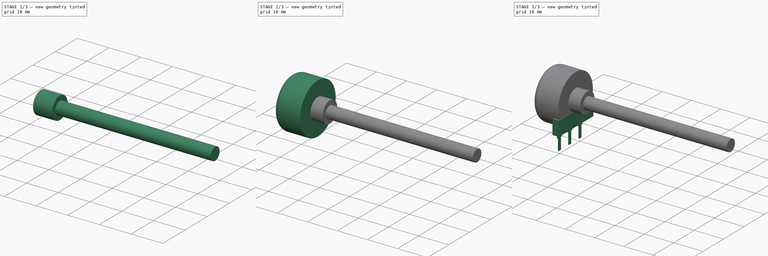
[diagram: build sequence overview — one tinted view per stage of 3, left to right]
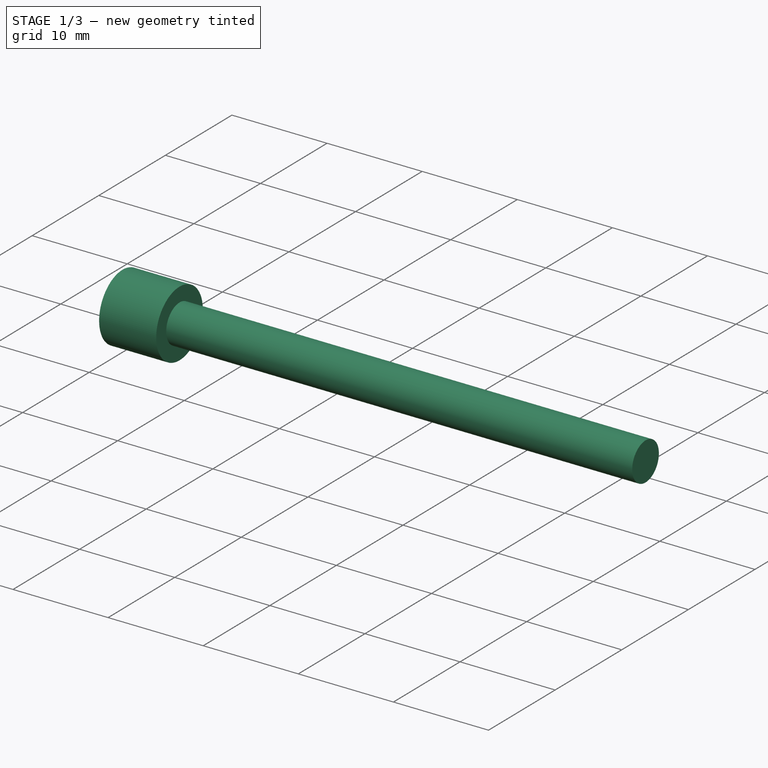
[diagram: stage 1 of 3 — iso view after this stage's code; geometry added in this stage tinted green]
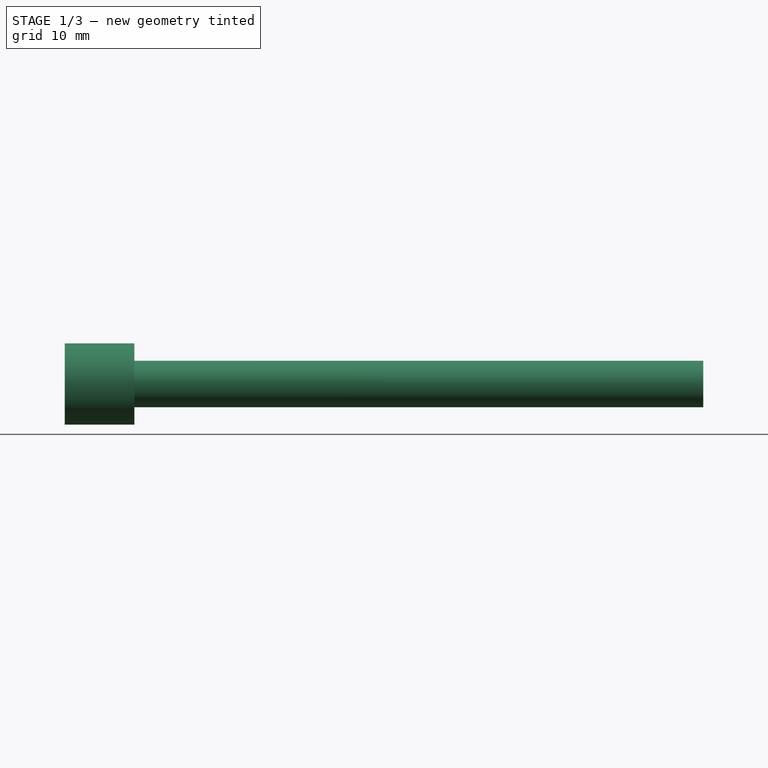
[diagram: stage 1 of 3 — front view after this stage's code; geometry added in this stage tinted green]
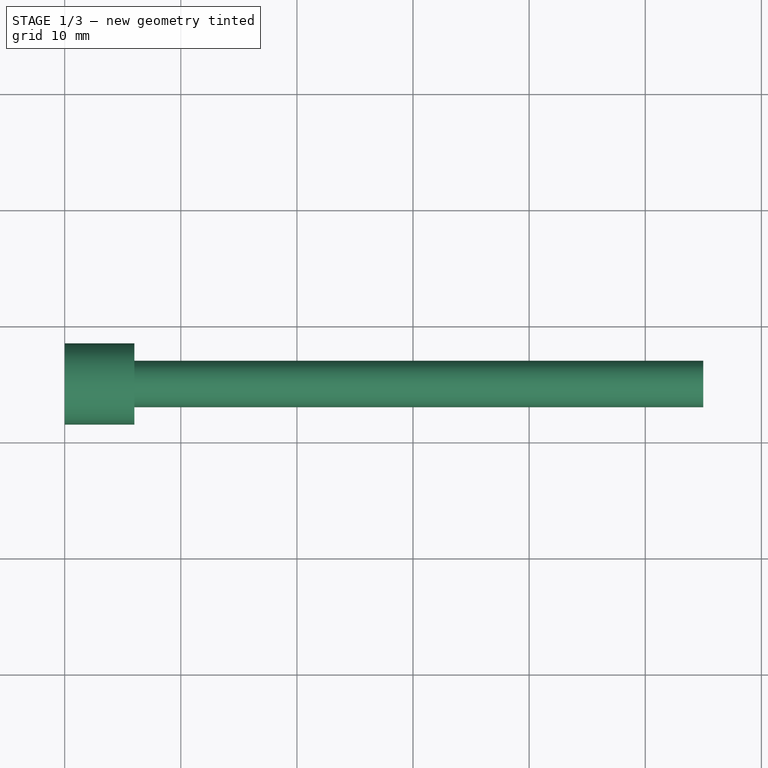
[diagram: stage 1 of 3 — top view after this stage's code; geometry added in this stage tinted green]
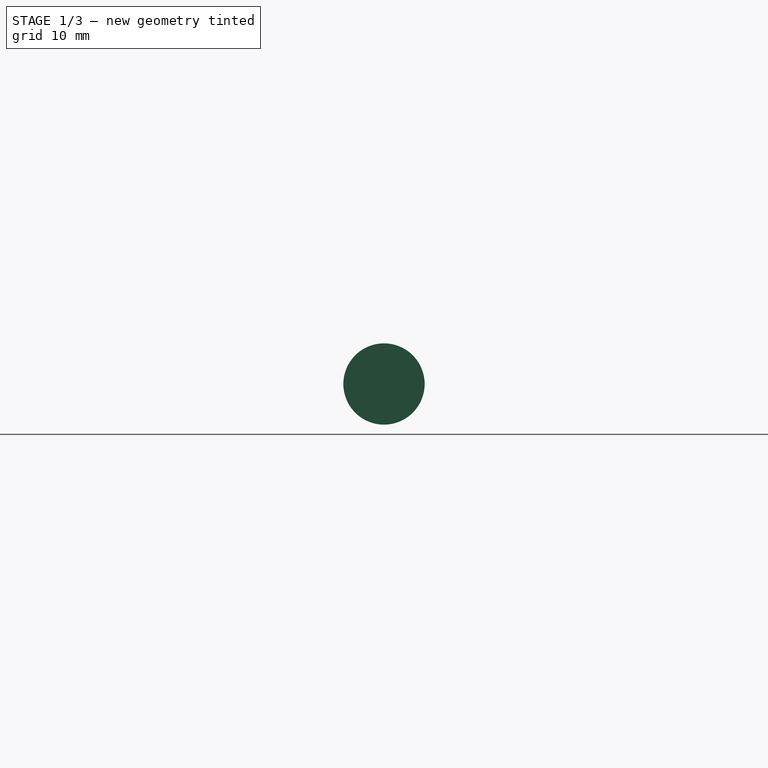
[diagram: stage 1 of 3 — right view after this stage's code; geometry added in this stage tinted green]
FCSTD DOCUMENT  (FreeCAD 0.16R6703 (Git))
Label: Potentiometer_Omeg_PC16PU
License: All rights reserved
LicenseURL: http://en.wikipedia.org/wiki/All_rights_reserved
objects: Sketcher::SketchObject×5, PartDesign::Pad×5, Spreadsheet::Sheet×1, PartDesign::Fillet×1
note: 16 computed .brp shape members not serialized (recipe doc carries the construction recipe); baked Part::Feature solids carry a one-line shape summary decoded from their .brp

FEATURE [Sketcher::SketchObject] Sketch003
  Placement = pos=(0,0,0) rot=(0.57735,0.57735,0.57735;2.0944rad)
  expr: Constraints[2] = 10.8 + 0.5
  expr: Constraints[1] = Spreadsheet.rmy
  expr: Constraints[0] = Spreadsheet.dscrew / 2
  sketch-geometry (1):
    g0: Circle CenterX=-5 CenterY=11.3 CenterZ=0 NormalX=0 NormalY=0 NormalZ=1 Radius=3.5
  constraints (3):
    c: Radius(g0) = 3.5
    c: DistanceX(g0,g-1) = 5
    c: DistanceY(g-1,g0) = 11.3
FEATURE [PartDesign::Pad] Pad003
  Length = 6
  Length2 = 100
  Placement = pos=(0,0,0) rot=(0.57735,0.57735,0.57735;2.0944rad)
  Sketch = -> Sketch003
  Type = 0
  expr: Length = Spreadsheet.wscrew
FEATURE [Sketcher::SketchObject] Sketch004
  Placement = pos=(0,0,0) rot=(0.57735,0.57735,0.57735;2.0944rad)
  expr: Constraints[2] = 10.8 + 0.5
  expr: Constraints[1] = Spreadsheet.rmy
  expr: Constraints[0] = Spreadsheet.dshaft / 2
  sketch-geometry (1):
    g0: Circle CenterX=-5 CenterY=11.3 CenterZ=0 NormalX=0 NormalY=0 NormalZ=1 Radius=2
  constraints (3):
    c: Radius(g0) = 2
    c: DistanceX(g0,g-1) = 5
    c: DistanceY(g-1,g0) = 11.3
FEATURE [PartDesign::Pad] Pad004
  Length = 55
  Length2 = 100
  Placement = pos=(0,0,0) rot=(0.57735,0.57735,0.57735;2.0944rad)
  Sketch = -> Sketch004
  Type = 0
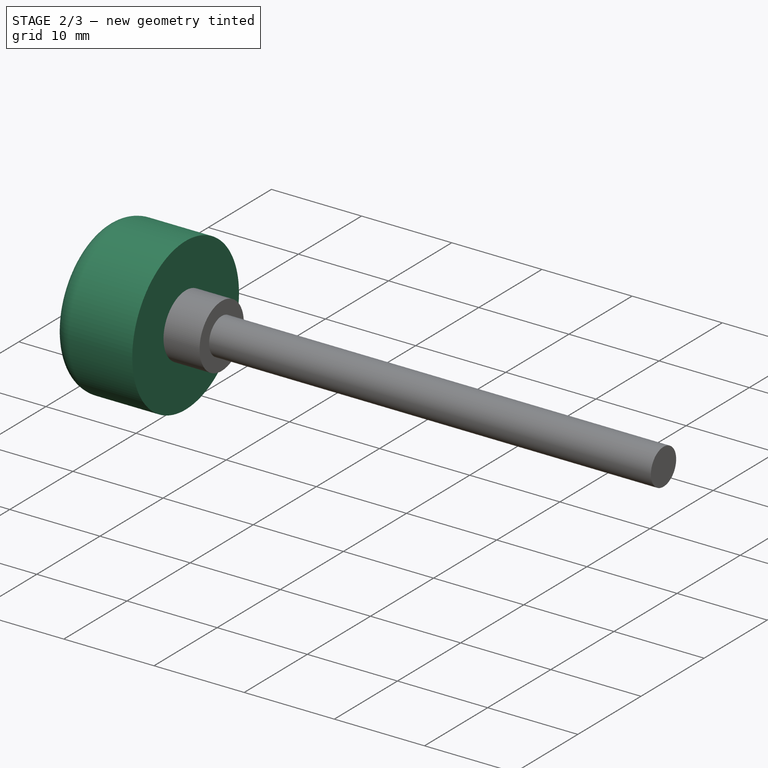
[diagram: stage 2 of 3 — iso view after this stage's code; geometry added in this stage tinted green]
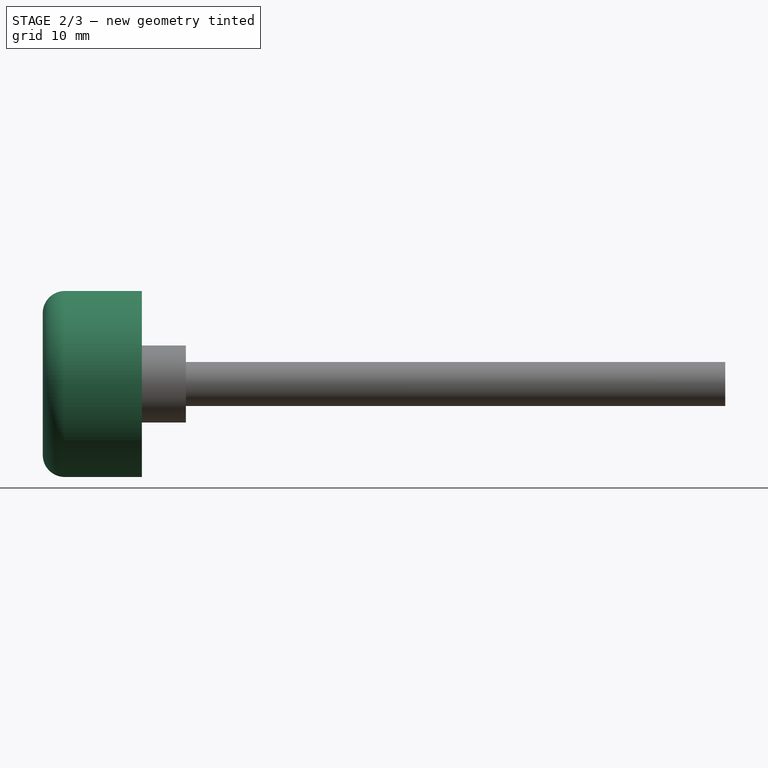
[diagram: stage 2 of 3 — front view after this stage's code; geometry added in this stage tinted green]
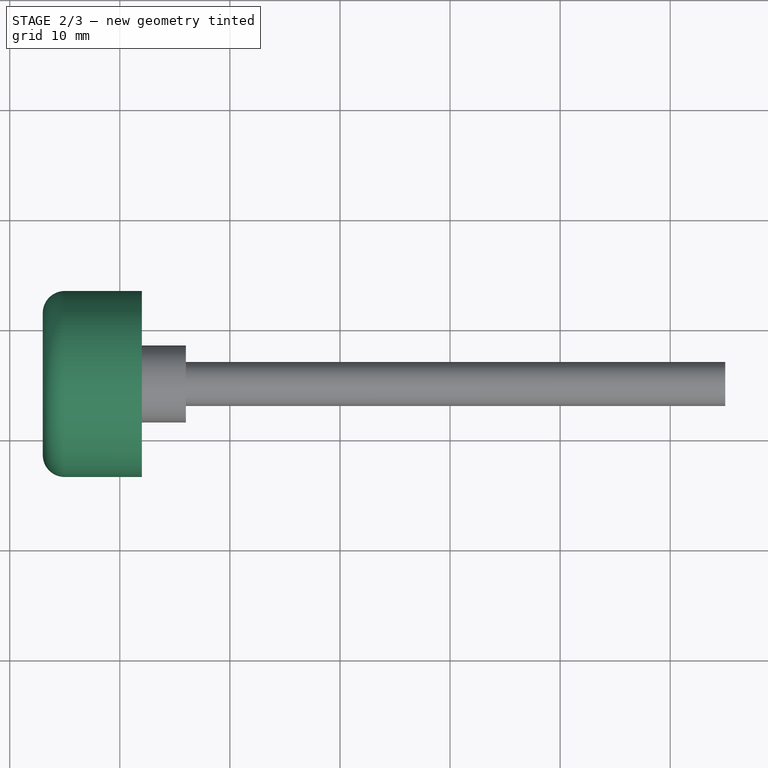
[diagram: stage 2 of 3 — top view after this stage's code; geometry added in this stage tinted green]
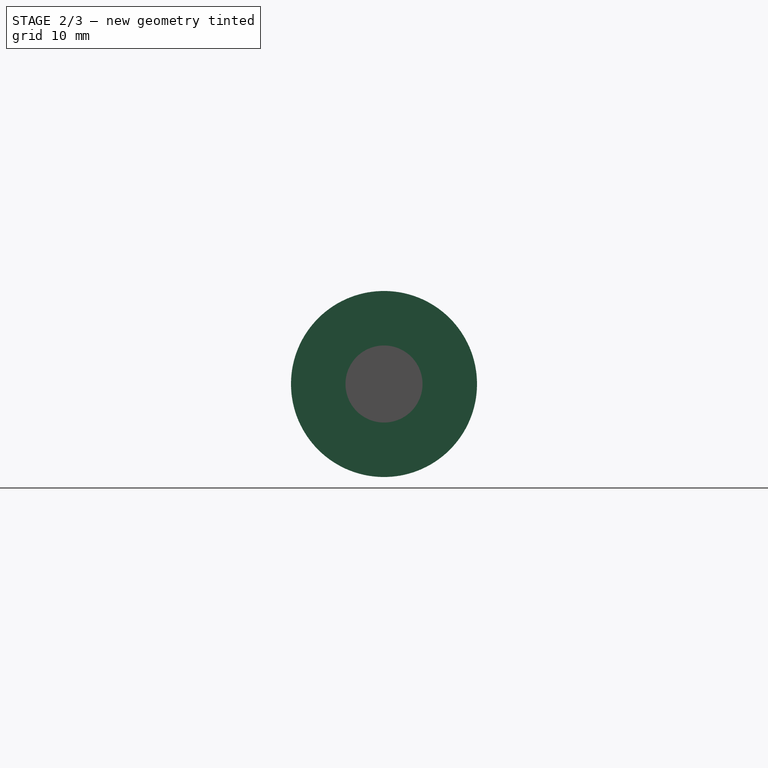
[diagram: stage 2 of 3 — right view after this stage's code; geometry added in this stage tinted green]
FEATURE [Sketcher::SketchObject] Sketch002
  Placement = pos=(0,0,0) rot=(0.57735,0.57735,0.57735;2.0944rad)
  expr: Constraints[2] = 10.8 + 0.5
  expr: Constraints[1] = Spreadsheet.rmy
  expr: Constraints[0] = 16.9 / 2
  sketch-geometry (1):
    g0: Circle CenterX=-5 CenterY=11.3 CenterZ=0 NormalX=0 NormalY=0 NormalZ=1 Radius=8.45
  constraints (3):
    c: Radius(g0) = 8.45
    c: DistanceX(g0,g-1) = 5
    c: DistanceY(g-1,g0) = 11.3
FEATURE [PartDesign::Pad] Pad002
  Length = 2
  Length2 = 7
  Placement = pos=(0,0,0) rot=(0.57735,0.57735,0.57735;2.0944rad)
  Sketch = -> Sketch002
  Type = 4
FEATURE [PartDesign::Fillet] Fillet
  Base = -> Pad002 [Edge2]
  Placement = pos=(0,0,0) rot=(0.57735,0.57735,0.57735;2.0944rad)
  Radius = 2
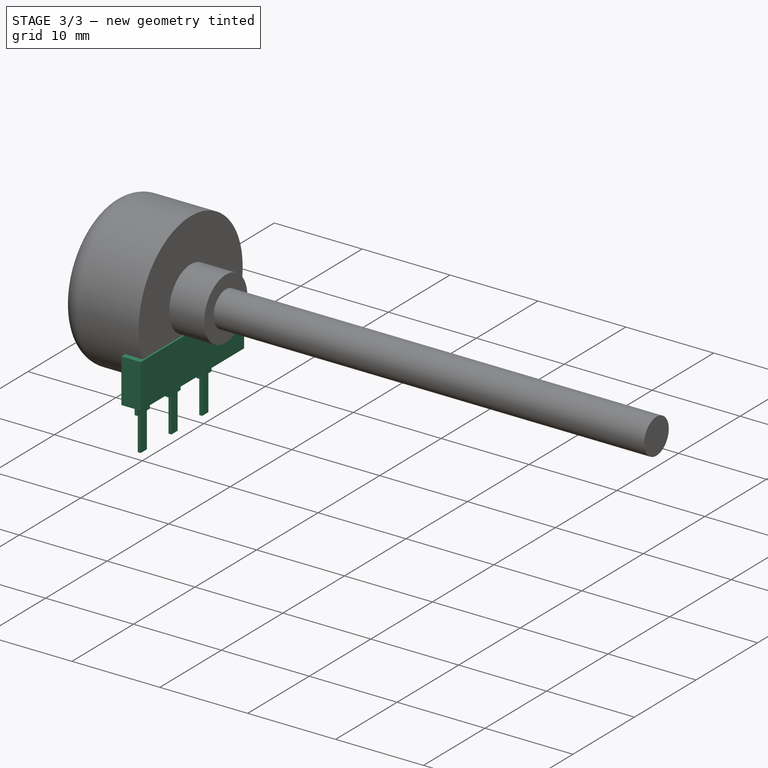
[diagram: stage 3 of 3 — iso view after this stage's code; geometry added in this stage tinted green]
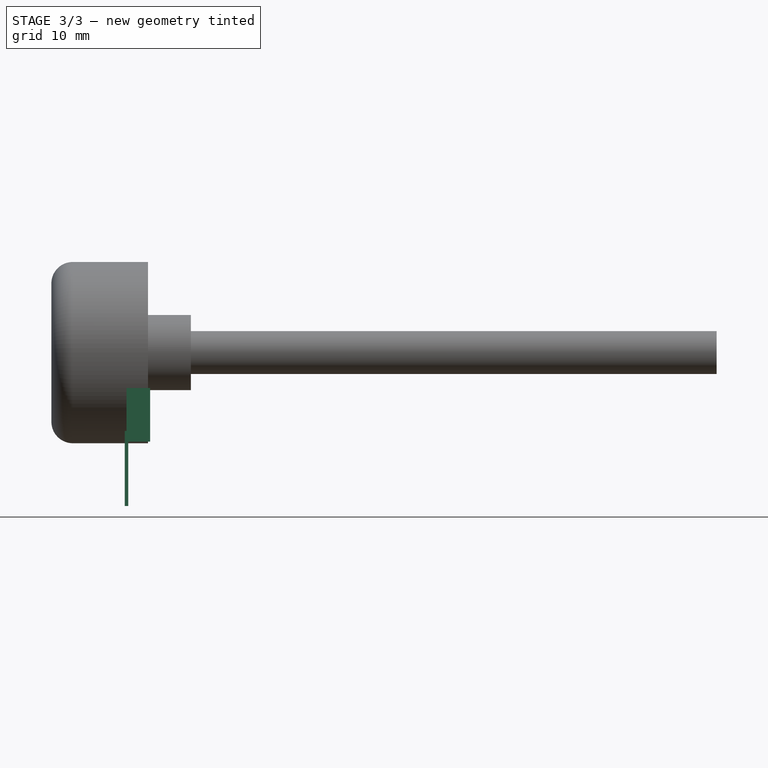
[diagram: stage 3 of 3 — front view after this stage's code; geometry added in this stage tinted green]
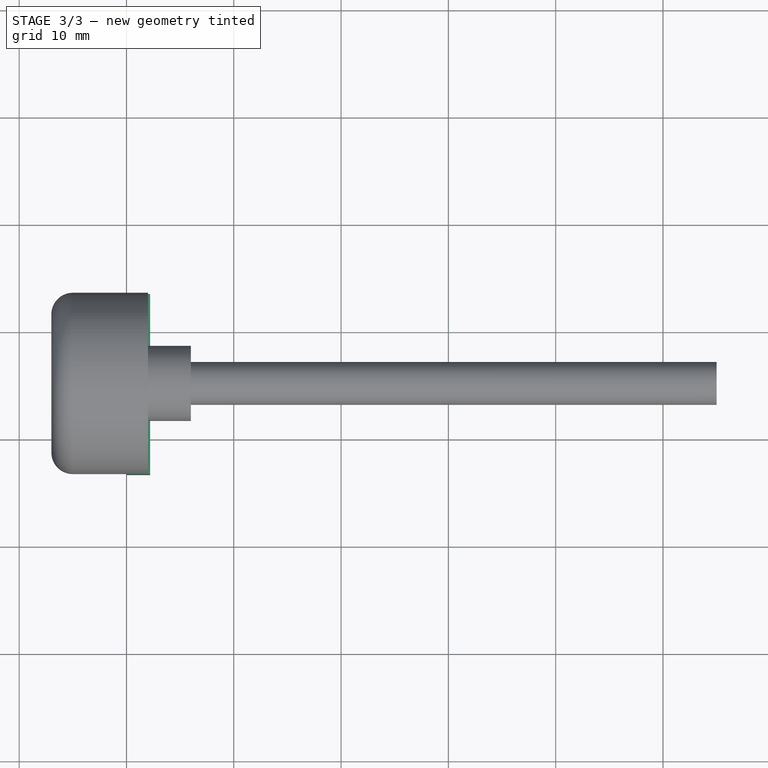
[diagram: stage 3 of 3 — top view after this stage's code; geometry added in this stage tinted green]
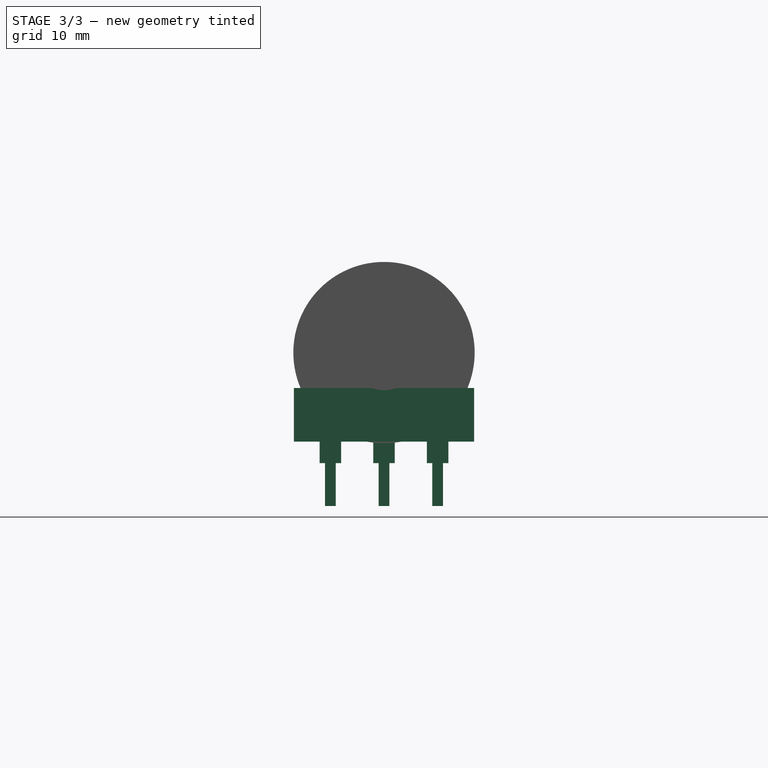
[diagram: stage 3 of 3 — right view after this stage's code; geometry added in this stage tinted green]
FEATURE [Spreadsheet::Sheet] Spreadsheet
  cells = A1=body; B1(wbody)=9.300000000000001; C1(hbody)=16.9; A2=screw; B2(wscrew)=6; C2(dscrew)=7; A3=shaft; B3(wshaft)=44; C3(dshaft)=4; A4=pinxoffset; B4(pinxoffset)=6.3; C4(pinyoffset)=3.449999999999999; A5=RM; B5(rmx)=5; C5(rmy)=5; A6=H; B6(H)=21; A7=d_wire; B7(d_wire)=1; A8=screwzpos; B8(screwzpos)=12.5
FEATURE [Sketcher::SketchObject] Sketch
  Placement = pos=(0,0,0) rot=(0.57735,0.57735,0.57735;2.0944rad)
  expr: Constraints[70] = Spreadsheet.d_wire / 2
  expr: Constraints[69] = Spreadsheet.d_wire / 2
  expr: Constraints[68] = Spreadsheet.d_wire / 2
  expr: Constraints[65] = Spreadsheet.d_wire * 2
  expr: Constraints[35] = Spreadsheet.rmy - Spreadsheet.d_wire
  expr: Constraints[34] = Spreadsheet.d_wire / 2
  expr: Constraints[33] = Spreadsheet.d_wire
  expr: Constraints[32] = Spreadsheet.rmy - Spreadsheet.d_wire
  sketch-geometry (24):
    g0: LineSegment StartX=-0.5 StartY=-3 StartZ=0 EndX=0.5 EndY=-3 EndZ=0
    g1: LineSegment StartX=0.5 StartY=-3 StartZ=0 EndX=0.5 EndY=1 EndZ=0
    g2: LineSegment StartX=0.5 StartY=1 StartZ=0 EndX=-0.5 EndY=1 EndZ=0
    g3: LineSegment StartX=-0.5 StartY=1 StartZ=0 EndX=-0.5 EndY=-3 EndZ=0
    g4: LineSegment StartX=-5.5 StartY=1 StartZ=0 EndX=-4.5 EndY=1 EndZ=0
    g5: LineSegment StartX=-4.5 StartY=1 StartZ=0 EndX=-4.5 EndY=-3 EndZ=0
    g6: LineSegment StartX=-4.5 StartY=-3 StartZ=0 EndX=-5.5 EndY=-3 EndZ=0
    g7: LineSegment StartX=-5.5 StartY=-3 StartZ=0 EndX=-5.5 EndY=1 EndZ=0
    g8: LineSegment StartX=-9.5 StartY=1 StartZ=0 EndX=-10.5 EndY=1 EndZ=0
    g9: LineSegment StartX=-10.5 StartY=1 StartZ=0 EndX=-10.5 EndY=-3 EndZ=0
    g10: LineSegment StartX=-10.5 StartY=-3 StartZ=0 EndX=-9.5 EndY=-3 EndZ=0
    g11: LineSegment StartX=-9.5 StartY=-3 StartZ=0 EndX=-9.5 EndY=1 EndZ=0
    g12: LineSegment StartX=-11 StartY=1 StartZ=0 EndX=-9 EndY=1 EndZ=0
    g13: LineSegment StartX=-9 StartY=1 StartZ=0 EndX=-9 EndY=4 EndZ=0
    g14: LineSegment StartX=-9 StartY=4 StartZ=0 EndX=-11 EndY=4 EndZ=0
    g15: LineSegment StartX=-11 StartY=4 StartZ=0 EndX=-11 EndY=1 EndZ=0
    g16: LineSegment StartX=-6 StartY=1 StartZ=0 EndX=-4 EndY=1 EndZ=0
    g17: LineSegment StartX=-4 StartY=1 StartZ=0 EndX=-4 EndY=4 EndZ=0
    g18: LineSegment StartX=-4 StartY=4 StartZ=0 EndX=-6 EndY=4 EndZ=0
    g19: LineSegment StartX=-6 StartY=4 StartZ=0 EndX=-6 EndY=1 EndZ=0
    g20: LineSegment StartX=-1 StartY=1 StartZ=0 EndX=1 EndY=1 EndZ=0
    g21: LineSegment StartX=1 StartY=1 StartZ=0 EndX=1 EndY=4 EndZ=0
    g22: LineSegment StartX=1 StartY=4 StartZ=0 EndX=-1 EndY=4 EndZ=0
    g23: LineSegment StartX=-1 StartY=4 StartZ=0 EndX=-1 EndY=1 EndZ=0
  constraints (72):
    c: Coincident(g0,g1)
    c: Coincident(g1,g2)
    c: Coincident(g2,g3)
    c: Coincident(g3,g0)
    c: Horizontal(g0)
    c: Horizontal(g2)
    c: Vertical(g1)
    c: Vertical(g3)
    c: Coincident(g4,g5)
    c: Coincident(g5,g6)
    c: Coincident(g6,g7)
    c: Coincident(g7,g4)
    c: Horizontal(g4)
    c: Horizontal(g6)
    c: Vertical(g5)
    c: Vertical(g7)
    c: Coincident(g8,g9)
    c: Coincident(g9,g10)
    c: Coincident(g10,g11)
    c: Coincident(g11,g8)
    c: Horizontal(g8)
    c: Horizontal(g10)
    c: Vertical(g9)
    c: Vertical(g11)
    c: DistanceY(g6,g9) = 0
    c: DistanceY(g0,g5) = 0
    c: Equal(g1,g5)
    c: Equal(g5,g9)
    c: Equal(g8,g4)
    c: Equal(g4,g2)
    c: DistanceY(g0,g-1) = 3
    c: DistanceY(g1,g1) = 4
    c: DistanceX(g10,g6) = 4
    c: DistanceX(g0,g0) = 1
    c: DistanceX(g2,g-1) = 0.5
    c: DistanceX(g5,g0) = 4
    c: Coincident(g12,g13)
    c: Coincident(g13,g14)
    c: Coincident(g14,g15)
    c: Coincident(g15,g12)
    c: Horizontal(g12)
    c: Horizontal(g14)
    c: Vertical(g13)
    c: Vertical(g15)
    c: Coincident(g16,g17)
    c: Coincident(g17,g18)
    c: Coincident(g18,g19)
    c: Coincident(g19,g16)
    c: Horizontal(g16)
    c: Horizontal(g18)
    c: Vertical(g17)
    c: Vertical(g19)
    c: Coincident(g20,g21)
    c: Coincident(g21,g22)
    c: Coincident(g22,g23)
    c: Coincident(g23,g20)
    c: Horizontal(g20)
    c: Horizontal(g22)
    c: Vertical(g21)
    c: Vertical(g23)
    c: Equal(g21,g17)
    c: Equal(g17,g13)
    c: PointOnObject(g8,g12)
    c: PointOnObject(g4,g16)
    c: PointOnObject(g1,g20)
    c: DistanceX(g14,g14) = 2
    c: Equal(g14,g18)
    c: Equal(g18,g22)
    c: DistanceX(g20,g2) = 0.5
    c: DistanceX(g16,g4) = 0.5
    c: DistanceX(g12,g8) = 0.5
    c: DistanceY(g21,g21) = 3
FEATURE [PartDesign::Pad] Pad
  Length = 0.333333
  Length2 = 100
  Midplane = true
  Placement = pos=(0,0,0) rot=(0.57735,0.57735,0.57735;2.0944rad)
  Sketch = -> Sketch
  Type = 0
  expr: Length = Spreadsheet.d_wire / 3
FEATURE [Sketcher::SketchObject] Sketch001
  Placement = pos=(0,0,0) rot=(0.57735,0.57735,0.57735;2.0944rad)
  expr: Constraints[9] = (16.8 - Spreadsheet.rmy * 2) / 2
  sketch-geometry (4):
    g0: LineSegment StartX=-13.4 StartY=8 StartZ=0 EndX=3.4 EndY=8 EndZ=0
    g1: LineSegment StartX=3.4 StartY=8 StartZ=0 EndX=3.4 EndY=3 EndZ=0
    g2: LineSegment StartX=3.4 StartY=3 StartZ=0 EndX=-13.4 EndY=3 EndZ=0
    g3: LineSegment StartX=-13.4 StartY=3 StartZ=0 EndX=-13.4 EndY=8 EndZ=0
  constraints (12):
    c: Coincident(g0,g1)
    c: Coincident(g1,g2)
    c: Coincident(g2,g3)
    c: Coincident(g3,g0)
    c: Horizontal(g0)
    c: Horizontal(g2)
    c: Vertical(g1)
    c: Vertical(g3)
    c: DistanceX(g0,g0) = 16.8
    c: DistanceX(g-1,g1) = 3.4
    c: DistanceY(g-1,g1) = 3
    c: DistanceY(g1,g1) = 5
FEATURE [PartDesign::Pad] Pad001
  Length = 2.2
  Length2 = 1
  Placement = pos=(0,0,0) rot=(0.57735,0.57735,0.57735;2.0944rad)
  Sketch = -> Sketch001
  Type = 0
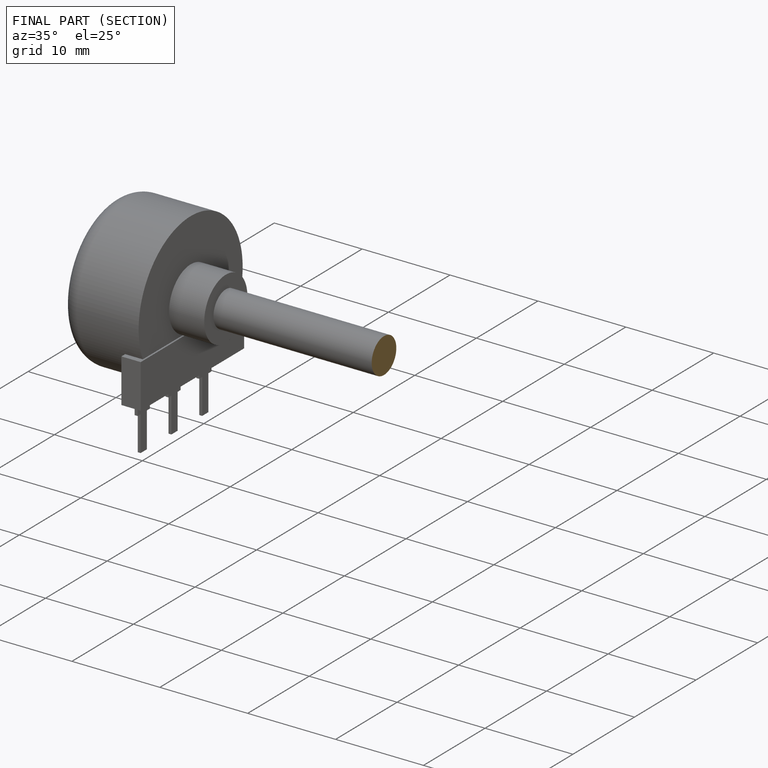
[diagram: finished part — half-section view (interior)]
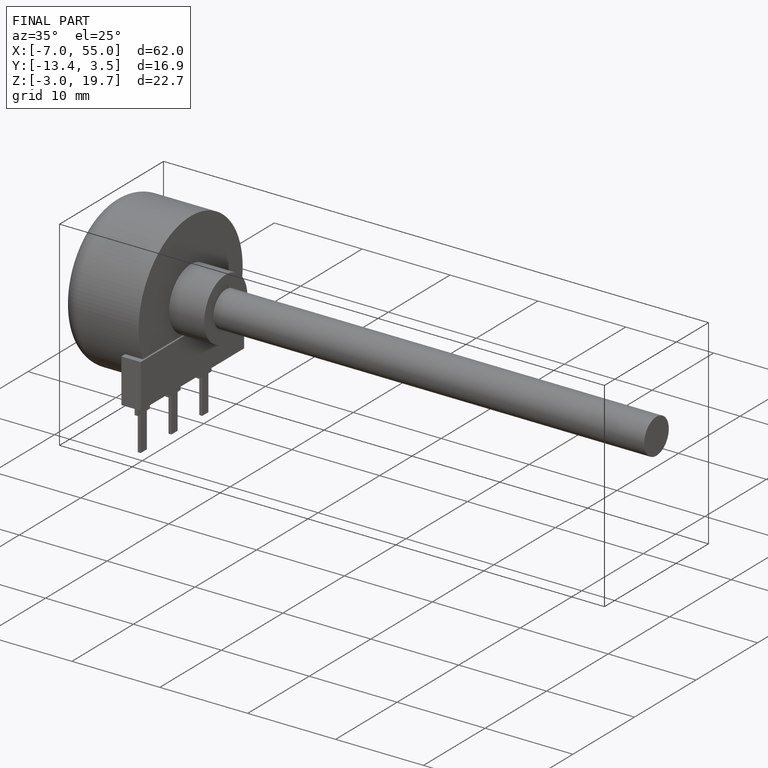
[diagram: finished part — iso view with bounding-box wireframe]
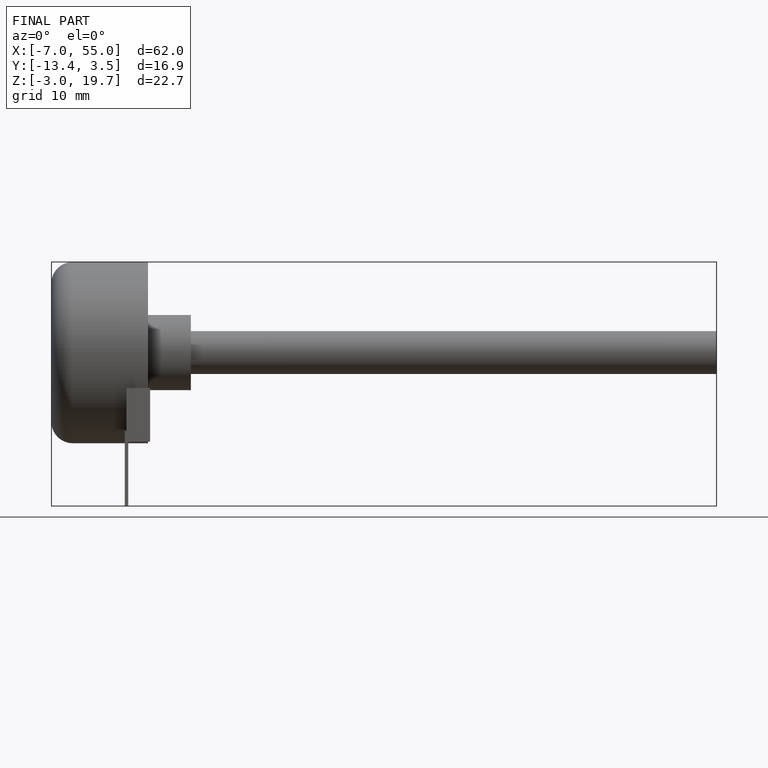
[diagram: finished part — front view with bounding-box wireframe]
